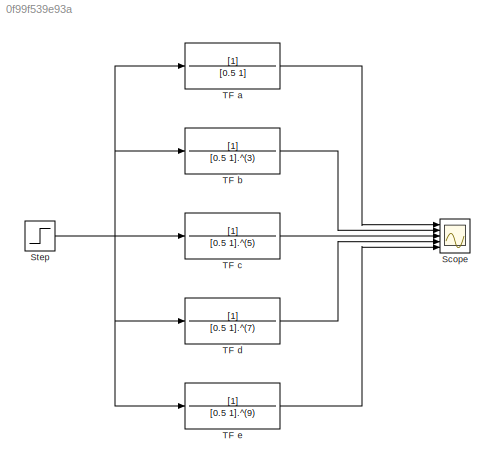
MODEL slx_0f99f539e93a
KIND model
CONFIG AbsTol = auto
CONFIG EnableMultiTasking = off
CONFIG FixedStep = auto
CONFIG MaxStep = auto
CONFIG MinStep = auto
CONFIG RelTol = 1e-3
CONFIG SampleTimeConstraint = Unconstrained
CONFIG SolverName = VariableStepAuto
CONFIG StartTime = 0.0
CONFIG StopTime = 10
BLOCK [Scope] Scope
  Floating = off
  NumInputPorts = 5
  Ports = [5]
  ScopeSpecificationString = Simulink.scopes.TimeScopeBlockCfg('CurrentConfiguration', extmgr.ConfigurationSet(extmgr.Configuration('Core','General UI',true),extmgr.Configuration('Core','Source UI',true),extmgr.Configuration('Sources','WiredSimulink',true),extmgr.Configuration('Visuals','Time Domain',true,'SerializedDisplays',{struct('MinYLimReal','-0.125','MaxYLimReal','1.125','YLabelReal','','MinYLimMag','0.00000','MaxYLimM...<+1370ch>
BLOCK [Step] Step
  SampleTime = 0
BLOCK [TransferFcn] TF a 
  Denominator = [0.5 1]
BLOCK [TransferFcn] TF b
  Denominator = [0.5 1].^(3)
BLOCK [TransferFcn] TF c
  Denominator = [0.5 1].^(5)
BLOCK [TransferFcn] TF d
  Denominator = [0.5 1].^(7)
BLOCK [TransferFcn] TF e
  Denominator = [0.5 1].^(9)
NET Step:1 -> TF a :1, TF b:1, TF c:1, TF d:1, TF e:1
LINE TF a :1 -> Scope:1
LINE TF b:1 -> Scope:2
LINE TF c:1 -> Scope:3
LINE TF d:1 -> Scope:4
LINE TF e:1 -> Scope:5
note: NET lines group one-source signal fan-out (src -> all destinations, sorted); 1:1 wires keep LINE
